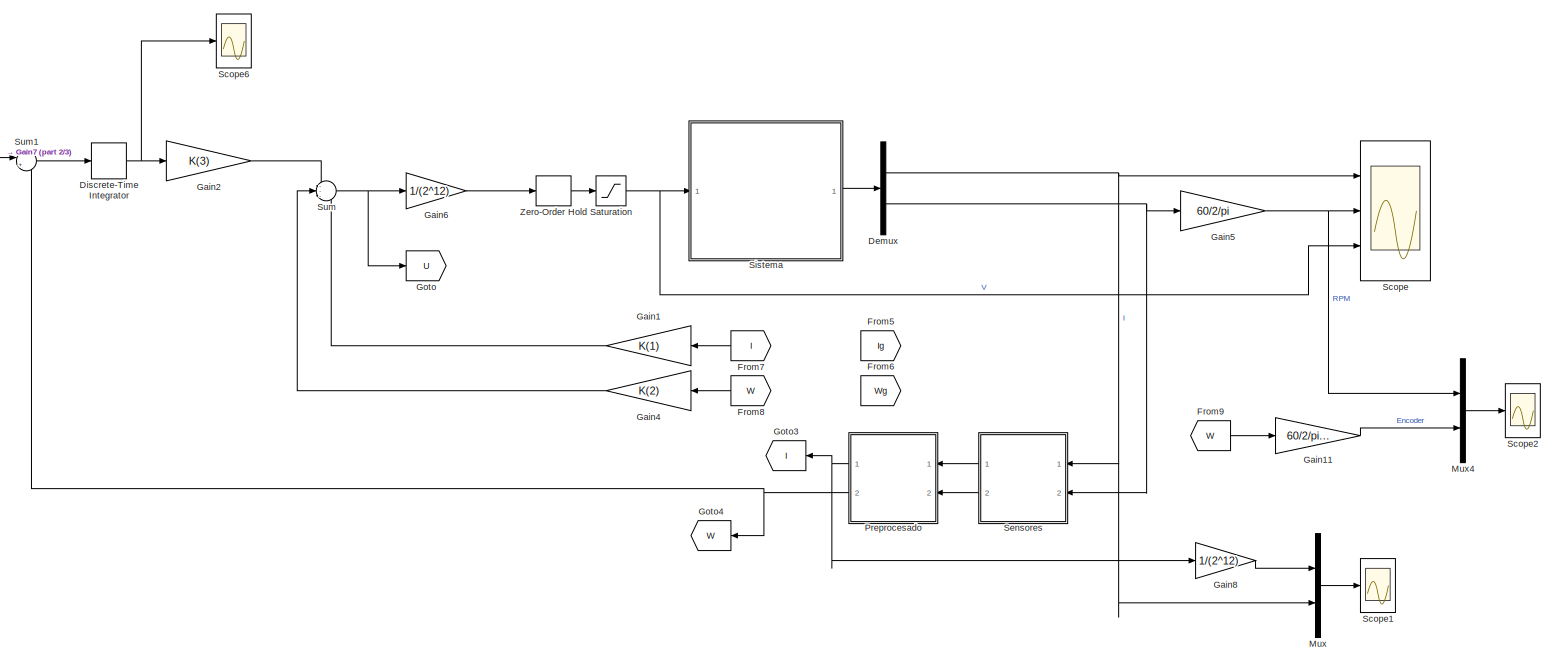
[diagram: root canvas - part 1/3, top center region]
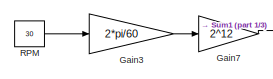
[diagram: root canvas - part 2/3, top left region]
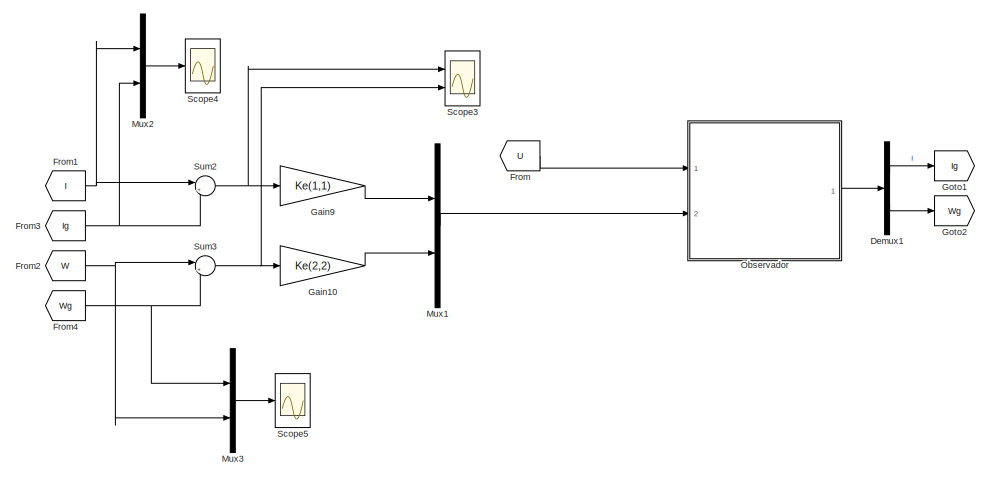
[diagram: root canvas - part 3/3, bottom left region]
MODEL slx_d7836b47fecc
KIND model
CONFIG AbsTol = auto
CONFIG EnableMultiTasking = off
CONFIG FixedStep = Ts
CONFIG MaxStep = auto
CONFIG MinStep = auto
CONFIG RelTol = 1e-3
CONFIG SampleTimeConstraint = Unconstrained
CONFIG Solver = ode4
CONFIG SolverName = ode4
CONFIG StartTime = 0.0
CONFIG StopTime = 10
BLOCK [Demux] Demux
  DisplayOption = bar
  Outputs = 2
  Ports = [1, 2]
BLOCK [Demux] Demux1
  DisplayOption = bar
  Outputs = 2
  Ports = [1, 2]
BLOCK [DiscreteIntegrator] Discrete-Time Integrator
  ICPrevOutput = DiscIntNeverNeededParam
  ICPrevScaledInput = DiscIntNeverNeededParam
  InitialConditionSetting = Auto
  Ports = [1, 1]
  SampleTime = Tsc
BLOCK [From] From
  GotoTag = U
BLOCK [From] From1
  GotoTag = I
BLOCK [From] From2
  GotoTag = W
BLOCK [From] From3
  GotoTag = Ig
BLOCK [From] From4
  GotoTag = Wg
BLOCK [From] From5
  Commented = on
  GotoTag = Ig
BLOCK [From] From6
  Commented = on
  GotoTag = Wg
BLOCK [From] From7
  GotoTag = I
BLOCK [From] From8
  GotoTag = W
BLOCK [From] From9
  GotoTag = W
BLOCK [Gain] Gain1
  Gain = K(1)
  OutDataTypeStr = Inherit: Inherit via internal rule
  ParamDataTypeStr = Inherit: Inherit via internal rule
  SaturateOnIntegerOverflow = off
BLOCK [Gain] Gain10
  Gain = Ke(2,2)
  OutDataTypeStr = Inherit: Inherit via internal rule
  ParamDataTypeStr = Inherit: Inherit via internal rule
  SaturateOnIntegerOverflow = off
BLOCK [Gain] Gain11
  Gain = 60/2/pi/2^12
  OutDataTypeStr = Inherit: Inherit via internal rule
  ParamDataTypeStr = Inherit: Inherit via internal rule
  SaturateOnIntegerOverflow = off
BLOCK [Gain] Gain2
  Gain = K(3)
  OutDataTypeStr = Inherit: Inherit via internal rule
  ParamDataTypeStr = Inherit: Inherit via internal rule
  SaturateOnIntegerOverflow = off
BLOCK [Gain] Gain3
  Gain = 2*pi/60
  OutDataTypeStr = Inherit: Inherit via internal rule
  ParamDataTypeStr = Inherit: Inherit via internal rule
  SaturateOnIntegerOverflow = off
BLOCK [Gain] Gain4
  Gain = K(2)
  OutDataTypeStr = Inherit: Inherit via internal rule
  ParamDataTypeStr = Inherit: Inherit via internal rule
  SaturateOnIntegerOverflow = off
BLOCK [Gain] Gain5
  Gain = 60/2/pi
  OutDataTypeStr = Inherit: Inherit via internal rule
  ParamDataTypeStr = Inherit: Inherit via internal rule
  SaturateOnIntegerOverflow = off
BLOCK [Gain] Gain6
  Gain = 1/(2^12)
  OutDataTypeStr = Inherit: Inherit via internal rule
  ParamDataTypeStr = Inherit: Inherit via internal rule
  SaturateOnIntegerOverflow = off
BLOCK [Gain] Gain7
  Gain = 2^12
  OutDataTypeStr = Inherit: Inherit via internal rule
  ParamDataTypeStr = Inherit: Inherit via internal rule
  SaturateOnIntegerOverflow = off
BLOCK [Gain] Gain8
  Gain = 1/(2^12)
  OutDataTypeStr = Inherit: Inherit via internal rule
  ParamDataTypeStr = Inherit: Inherit via internal rule
  SaturateOnIntegerOverflow = off
BLOCK [Gain] Gain9
  Gain = Ke(1,1)
  OutDataTypeStr = Inherit: Inherit via internal rule
  ParamDataTypeStr = Inherit: Inherit via internal rule
  SaturateOnIntegerOverflow = off
BLOCK [Goto] Goto
  GotoTag = U
BLOCK [Goto] Goto1
  GotoTag = Ig
BLOCK [Goto] Goto2
  GotoTag = Wg
BLOCK [Goto] Goto3
  GotoTag = I
BLOCK [Goto] Goto4
  GotoTag = W
BLOCK [Mux] Mux
  DisplayOption = bar
  Inputs = 2
  Ports = [2, 1]
BLOCK [Mux] Mux1
  DisplayOption = bar
  Inputs = 2
  Ports = [2, 1]
BLOCK [Mux] Mux2
  DisplayOption = bar
  Inputs = 2
  Ports = [2, 1]
BLOCK [Mux] Mux3
  DisplayOption = bar
  Inputs = 2
  Ports = [2, 1]
BLOCK [Mux] Mux4
  DisplayOption = bar
  Inputs = 2
  Ports = [2, 1]
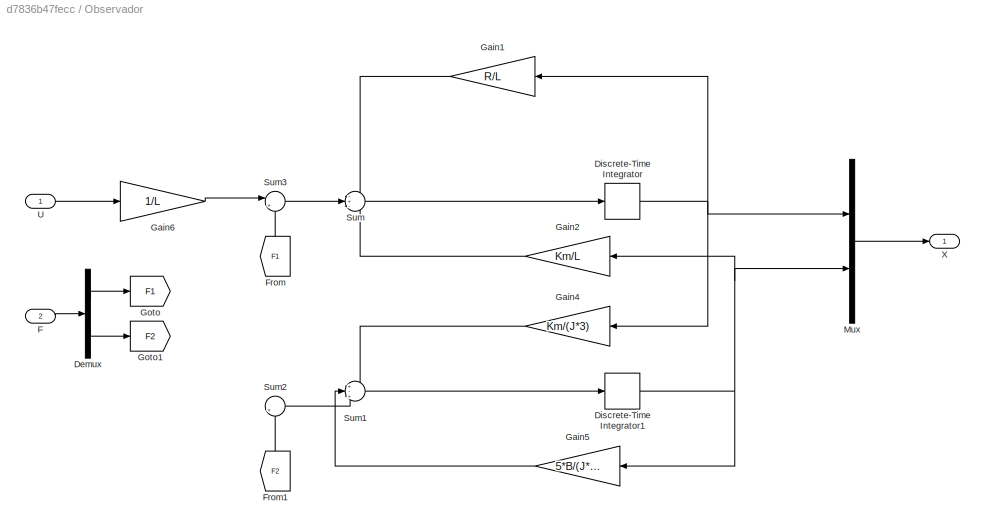
BLOCK [SubSystem] Observador
  Ports = [2, 1]
  RequestExecContextInheritance = off
BLOCK [Demux] Observador/Demux
  DisplayOption = bar
  Outputs = 2
  Ports = [1, 2]
BLOCK [DiscreteIntegrator] Observador/Discrete-Time Integrator
  ICPrevOutput = DiscIntNeverNeededParam
  ICPrevScaledInput = DiscIntNeverNeededParam
  InitialConditionSetting = Auto
  IntegratorMethod = Integration: Backward Euler
  Ports = [1, 1]
  SampleTime = Tsco
BLOCK [DiscreteIntegrator] Observador/Discrete-Time Integrator1
  ICPrevOutput = DiscIntNeverNeededParam
  ICPrevScaledInput = DiscIntNeverNeededParam
  InitialConditionSetting = Auto
  IntegratorMethod = Integration: Backward Euler
  Ports = [1, 1]
  SampleTime = Tsco
BLOCK [Inport] Observador/F
  IconDisplay = Port number
  Port = 2
BLOCK [From] Observador/From
  GotoTag = F1
BLOCK [From] Observador/From1
  GotoTag = F2
BLOCK [Gain] Observador/Gain1
  Gain = R/L
  OutDataTypeStr = Inherit: Inherit via internal rule
  ParamDataTypeStr = Inherit: Inherit via internal rule
  SaturateOnIntegerOverflow = off
BLOCK [Gain] Observador/Gain2
  Gain = Km/L
  OutDataTypeStr = Inherit: Inherit via internal rule
  ParamDataTypeStr = Inherit: Inherit via internal rule
  SaturateOnIntegerOverflow = off
BLOCK [Gain] Observador/Gain4
  Gain = Km/(J*3)
  OutDataTypeStr = Inherit: Inherit via internal rule
  ParamDataTypeStr = Inherit: Inherit via internal rule
  SaturateOnIntegerOverflow = off
BLOCK [Gain] Observador/Gain5
  Gain = 5*B/(J*3)
  OutDataTypeStr = Inherit: Inherit via internal rule
  ParamDataTypeStr = Inherit: Inherit via internal rule
  SaturateOnIntegerOverflow = off
BLOCK [Gain] Observador/Gain6
  Gain = 1/L
  OutDataTypeStr = Inherit: Inherit via internal rule
  ParamDataTypeStr = Inherit: Inherit via internal rule
  SaturateOnIntegerOverflow = off
BLOCK [Goto] Observador/Goto
  GotoTag = F1
BLOCK [Goto] Observador/Goto1
  GotoTag = F2
BLOCK [Mux] Observador/Mux
  DisplayOption = bar
  Inputs = 2
  Ports = [2, 1]
BLOCK [Sum] Observador/Sum
  IconShape = round
  InputSameDT = off
  Inputs = -+-
  OutDataTypeStr = Inherit: Inherit via internal rule
  Ports = [3, 1]
  SaturateOnIntegerOverflow = off
BLOCK [Sum] Observador/Sum1
  IconShape = round
  InputSameDT = off
  Inputs = +-+
  OutDataTypeStr = Inherit: Inherit via internal rule
  Ports = [3, 1]
  SaturateOnIntegerOverflow = off
BLOCK [Sum] Observador/Sum2
  IconShape = round
  InputSameDT = off
  Inputs = |++
  OutDataTypeStr = Inherit: Inherit via internal rule
  Ports = [2, 1]
  SaturateOnIntegerOverflow = off
BLOCK [Sum] Observador/Sum3
  IconShape = round
  InputSameDT = off
  Inputs = |++
  OutDataTypeStr = Inherit: Inherit via internal rule
  Ports = [2, 1]
  SaturateOnIntegerOverflow = off
BLOCK [Inport] Observador/U
  IconDisplay = Port number
BLOCK [Outport] Observador/X
  IconDisplay = Port number
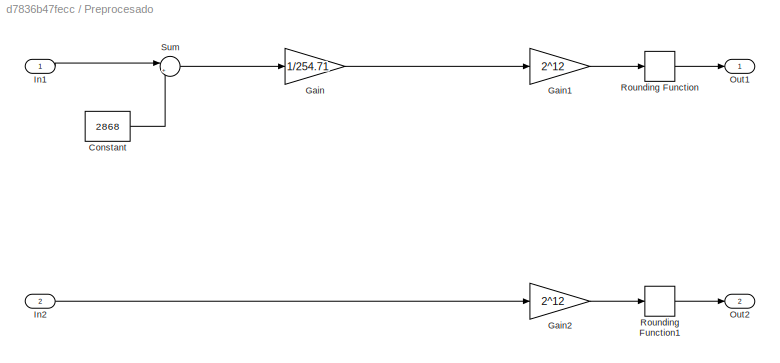
BLOCK [SubSystem] Preprocesado
  Ports = [2, 2]
  RequestExecContextInheritance = off
BLOCK [Constant] Preprocesado/Constant
  Value = 2868
BLOCK [Gain] Preprocesado/Gain
  Gain = 1/254.71
  OutDataTypeStr = Inherit: Inherit via internal rule
  ParamDataTypeStr = Inherit: Inherit via internal rule
  SaturateOnIntegerOverflow = off
BLOCK [Gain] Preprocesado/Gain1
  Gain = 2^12
  OutDataTypeStr = Inherit: Inherit via internal rule
  ParamDataTypeStr = Inherit: Inherit via internal rule
  SaturateOnIntegerOverflow = off
BLOCK [Gain] Preprocesado/Gain2
  Gain = 2^12
  OutDataTypeStr = Inherit: Inherit via internal rule
  ParamDataTypeStr = Inherit: Inherit via internal rule
  SaturateOnIntegerOverflow = off
BLOCK [Inport] Preprocesado/In1
  IconDisplay = Port number
BLOCK [Inport] Preprocesado/In2
  IconDisplay = Port number
  Port = 2
BLOCK [Outport] Preprocesado/Out1
  IconDisplay = Port number
BLOCK [Outport] Preprocesado/Out2
  IconDisplay = Port number
  Port = 2
BLOCK [Rounding] Preprocesado/Rounding Function
BLOCK [Rounding] Preprocesado/Rounding Function1
BLOCK [Sum] Preprocesado/Sum
  IconShape = round
  InputSameDT = off
  Inputs = |+-
  OutDataTypeStr = Inherit: Inherit via internal rule
  Ports = [2, 1]
  SaturateOnIntegerOverflow = off
BLOCK [Constant] RPM
  SampleTime = Ts
  Value = 30
BLOCK [Saturate] Saturation
  InputPortMap = u0
  LowerLimit = -12.8
  Ports = [1, 1]
  UpperLimit = 12.8
BLOCK [Scope] Scope
  Floating = off
  NumInputPorts = 3
  Ports = [3]
  ScopeSpecificationString = Simulink.scopes.TimeScopeBlockCfg('CurrentConfiguration', extmgr.ConfigurationSet(extmgr.Configuration('Core','General UI',true),extmgr.Configuration('Core','Source UI',true),extmgr.Configuration('Sources','WiredSimulink',true),extmgr.Configuration('Visuals','Time Domain',true,'SerializedDisplays',{struct('MinYLimReal','-2.39104','MaxYLimReal','2.58562','YLabelReal','','MinYLimMag','0.00000','MaxY...<+2668ch>
BLOCK [Scope] Scope1
  Floating = off
  NumInputPorts = 1
  Ports = [1]
  ScopeSpecificationString = Simulink.scopes.TimeScopeBlockCfg('CurrentConfiguration', extmgr.ConfigurationSet(extmgr.Configuration('Core','General UI',true),extmgr.Configuration('Core','Source UI',true),extmgr.Configuration('Sources','WiredSimulink',true,'DataLoggingVariableName','ScopeData1'),extmgr.Configuration('Visuals','Time Domain',true,'SerializedDisplays',{struct('MinYLimReal','-3.05678','MaxYLimReal','3.07022','YLab...<+1920ch>
BLOCK [Scope] Scope2
  Floating = off
  NumInputPorts = 1
  Ports = [1]
  ScopeSpecificationString = Simulink.scopes.TimeScopeBlockCfg('CurrentConfiguration', extmgr.ConfigurationSet(extmgr.Configuration('Core','General UI',true),extmgr.Configuration('Core','Source UI',true),extmgr.Configuration('Sources','WiredSimulink',true,'DataLoggingVariableName','ScopeData1'),extmgr.Configuration('Visuals','Time Domain',true,'SerializedDisplays',{struct('MinYLimReal','-68.84335','MaxYLimReal','119.74418','Y...<+1696ch>
BLOCK [Scope] Scope3
  Floating = off
  NumInputPorts = 2
  Ports = [2]
  ScopeSpecificationString = Simulink.scopes.TimeScopeBlockCfg('CurrentConfiguration', extmgr.ConfigurationSet(extmgr.Configuration('Core','General UI',true),extmgr.Configuration('Core','Source UI',true),extmgr.Configuration('Sources','WiredSimulink',true,'DataLoggingVariableName','ScopeData3'),extmgr.Configuration('Visuals','Time Domain',true,'SerializedDisplays',{struct('MinYLimReal','-15750.84055','MaxYLimReal','14185.1807...<+2720ch>
BLOCK [Scope] Scope4
  Floating = off
  NumInputPorts = 1
  Ports = [1]
  ScopeSpecificationString = Simulink.scopes.TimeScopeBlockCfg('CurrentConfiguration', extmgr.ConfigurationSet(extmgr.Configuration('Core','General UI',true),extmgr.Configuration('Core','Source UI',true),extmgr.Configuration('Sources','WiredSimulink',true,'DataLoggingVariableName','ScopeData4'),extmgr.Configuration('Visuals','Time Domain',true,'SerializedDisplays',{struct('MinYLimReal','-1450.25','MaxYLimReal','8862.25','YLab...<+1935ch>
BLOCK [Scope] Scope5
  Floating = off
  NumInputPorts = 1
  Ports = [1]
  ScopeSpecificationString = Simulink.scopes.TimeScopeBlockCfg('CurrentConfiguration', extmgr.ConfigurationSet(extmgr.Configuration('Core','General UI',true),extmgr.Configuration('Core','Source UI',true),extmgr.Configuration('Sources','WiredSimulink',true,'DataLoggingVariableName','ScopeData5'),extmgr.Configuration('Visuals','Time Domain',true,'SerializedDisplays',{struct('MinYLimReal','-16086.125','MaxYLimReal','144765.125',...<+1958ch>
BLOCK [Scope] Scope6
  Floating = off
  NumInputPorts = 1
  Ports = [1]
  ScopeSpecificationString = Simulink.scopes.TimeScopeBlockCfg('CurrentConfiguration', extmgr.ConfigurationSet(extmgr.Configuration('Core','General UI',true),extmgr.Configuration('Core','Source UI',true),extmgr.Configuration('Sources','WiredSimulink',true,'DataLoggingVariableName','ScopeData2'),extmgr.Configuration('Visuals','Time Domain',true,'SerializedDisplays',{struct('MinYLimReal','-2404.33795','MaxYLimReal','21639.04151...<+1645ch>
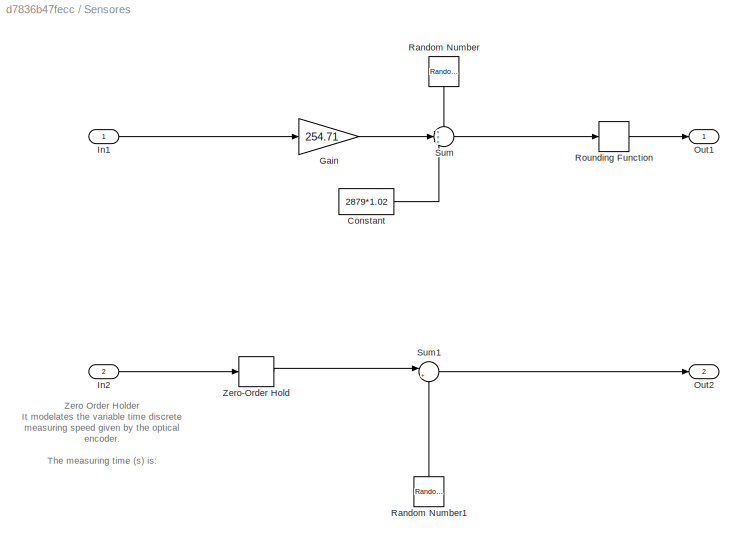
BLOCK [SubSystem] Sensores
  Ports = [2, 2]
  RequestExecContextInheritance = off
BLOCK [Constant] Sensores/Constant
  Value = 2879*1.02
BLOCK [Gain] Sensores/Gain
  Gain = 254.71
  OutDataTypeStr = Inherit: Inherit via internal rule
  ParamDataTypeStr = Inherit: Inherit via internal rule
  SaturateOnIntegerOverflow = off
BLOCK [Inport] Sensores/In1
  IconDisplay = Port number
BLOCK [Inport] Sensores/In2
  IconDisplay = Port number
  Port = 2
BLOCK [Outport] Sensores/Out1
  IconDisplay = Port number
BLOCK [Outport] Sensores/Out2
  IconDisplay = Port number
  Port = 2
BLOCK [RandomNumber] Sensores/Random Number
  SampleTime = Tsc
  Variance = 20^2
BLOCK [RandomNumber] Sensores/Random Number1
  SampleTime = Tsc
  Variance = 4
BLOCK [Rounding] Sensores/Rounding Function
BLOCK [Sum] Sensores/Sum
  IconShape = round
  InputSameDT = off
  Inputs = +++
  OutDataTypeStr = Inherit: Inherit via internal rule
  Ports = [3, 1]
  SaturateOnIntegerOverflow = off
BLOCK [Sum] Sensores/Sum1
  IconShape = round
  InputSameDT = off
  Inputs = |++
  OutDataTypeStr = Inherit: Inherit via internal rule
  Ports = [2, 1]
  SaturateOnIntegerOverflow = off
BLOCK [ZeroOrderHold] Sensores/Zero-Order Hold
  SampleTime = 60/30/20
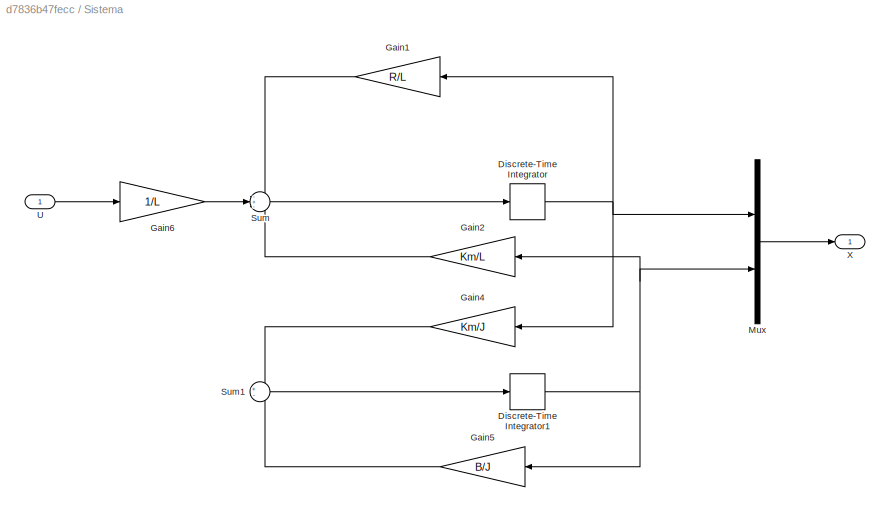
BLOCK [SubSystem] Sistema
  Ports = [1, 1]
  RequestExecContextInheritance = off
BLOCK [DiscreteIntegrator] Sistema/Discrete-Time Integrator
  ICPrevOutput = DiscIntNeverNeededParam
  ICPrevScaledInput = DiscIntNeverNeededParam
  InitialConditionSetting = Auto
  Ports = [1, 1]
  SampleTime = Ts
BLOCK [DiscreteIntegrator] Sistema/Discrete-Time Integrator1
  ICPrevOutput = DiscIntNeverNeededParam
  ICPrevScaledInput = DiscIntNeverNeededParam
  InitialConditionSetting = Auto
  Ports = [1, 1]
  SampleTime = Ts
BLOCK [Gain] Sistema/Gain1
  Gain = R/L
  OutDataTypeStr = Inherit: Inherit via internal rule
  ParamDataTypeStr = Inherit: Inherit via internal rule
  SaturateOnIntegerOverflow = off
BLOCK [Gain] Sistema/Gain2
  Gain = Km/L
  OutDataTypeStr = Inherit: Inherit via internal rule
  ParamDataTypeStr = Inherit: Inherit via internal rule
  SaturateOnIntegerOverflow = off
BLOCK [Gain] Sistema/Gain4
  Gain = Km/J
  OutDataTypeStr = Inherit: Inherit via internal rule
  ParamDataTypeStr = Inherit: Inherit via internal rule
  SaturateOnIntegerOverflow = off
BLOCK [Gain] Sistema/Gain5
  Gain = B/J
  OutDataTypeStr = Inherit: Inherit via internal rule
  ParamDataTypeStr = Inherit: Inherit via internal rule
  SaturateOnIntegerOverflow = off
BLOCK [Gain] Sistema/Gain6
  Gain = 1/L
  OutDataTypeStr = Inherit: Inherit via internal rule
  ParamDataTypeStr = Inherit: Inherit via internal rule
  SaturateOnIntegerOverflow = off
BLOCK [Mux] Sistema/Mux
  DisplayOption = bar
  Inputs = 2
  Ports = [2, 1]
BLOCK [Sum] Sistema/Sum
  IconShape = round
  InputSameDT = off
  Inputs = -+-
  OutDataTypeStr = Inherit: Inherit via internal rule
  Ports = [3, 1]
  SaturateOnIntegerOverflow = off
BLOCK [Sum] Sistema/Sum1
  IconShape = round
  InputSameDT = off
  Inputs = +-
  OutDataTypeStr = Inherit: Inherit via internal rule
  Ports = [2, 1]
  SaturateOnIntegerOverflow = off
BLOCK [Inport] Sistema/U
  IconDisplay = Port number
BLOCK [Outport] Sistema/X
  IconDisplay = Port number
BLOCK [Sum] Sum
  IconShape = round
  InputSameDT = off
  Inputs = ---
  OutDataTypeStr = Inherit: Inherit via internal rule
  Ports = [3, 1]
  SaturateOnIntegerOverflow = off
BLOCK [Sum] Sum1
  IconShape = round
  InputSameDT = off
  Inputs = |+-
  OutDataTypeStr = Inherit: Inherit via internal rule
  Ports = [2, 1]
  SaturateOnIntegerOverflow = off
BLOCK [Sum] Sum2
  IconShape = round
  InputSameDT = off
  Inputs = |+-
  OutDataTypeStr = Inherit: Inherit via internal rule
  Ports = [2, 1]
  SaturateOnIntegerOverflow = off
BLOCK [Sum] Sum3
  IconShape = round
  InputSameDT = off
  Inputs = |+-
  OutDataTypeStr = Inherit: Inherit via internal rule
  Ports = [2, 1]
  SaturateOnIntegerOverflow = off
BLOCK [ZeroOrderHold] Zero-Order Hold
  SampleTime = Tsc
ANNOTATION Sensores: Zero Order Holder It modelates the variable time discrete measuring speed given by the optical encoder. The measuring time (s) is: 60/(rpm)/20
LINE Demux1:1 -> Goto1:1
LINE Demux1:2 -> Goto2:1
NET Demux:1 -> Mux:2, Scope:1, Sensores:1
NET Demux:2 -> Gain5:1, Sensores:2
NET Discrete-Time Integrator:1 -> Gain2:1, Scope6:1
NET From1:1 -> Mux2:1, Sum2:1
NET From2:1 -> Mux3:2, Sum3:1
NET From3:1 -> Mux2:2, Sum2:2
NET From4:1 -> Mux3:1, Sum3:2
LINE From7:1 -> Gain1:1
LINE From8:1 -> Gain4:1
LINE From9:1 -> Gain11:1
LINE From:1 -> Observador:1
LINE Gain10:1 -> Mux1:2
LINE Gain11:1 -> Mux4:2
LINE Gain1:1 -> Sum:3
LINE Gain2:1 -> Sum:1
LINE Gain3:1 -> Gain7:1
LINE Gain4:1 -> Sum:2
NET Gain5:1 -> Mux4:1, Scope:2
LINE Gain6:1 -> Zero-Order Hold:1
LINE Gain7:1 -> Sum1:1
LINE Gain8:1 -> Mux:1
LINE Gain9:1 -> Mux1:1
LINE Mux1:1 -> Observador:2
LINE Mux2:1 -> Scope4:1
LINE Mux3:1 -> Scope5:1
LINE Mux4:1 -> Scope2:1
LINE Mux:1 -> Scope1:1
LINE Observador/Demux:1 -> Observador/Goto:1
LINE Observador/Demux:2 -> Observador/Goto1:1
NET Observador/Discrete-Time Integrator1:1 -> Observador/Gain2:1, Observador/Gain5:1, Observador/Mux:2
NET Observador/Discrete-Time Integrator:1 -> Observador/Gain1:1, Observador/Gain4:1, Observador/Mux:1
LINE Observador/F:1 -> Observador/Demux:1
LINE Observador/From1:1 -> Observador/Sum2:2
LINE Observador/From:1 -> Observador/Sum3:2
LINE Observador/Gain1:1 -> Observador/Sum:1
LINE Observador/Gain2:1 -> Observador/Sum:3
LINE Observador/Gain4:1 -> Observador/Sum1:1
LINE Observador/Gain5:1 -> Observador/Sum1:2
LINE Observador/Gain6:1 -> Observador/Sum3:1
LINE Observador/Mux:1 -> Observador/X:1
LINE Observador/Sum1:1 -> Observador/Discrete-Time Integrator1:1
LINE Observador/Sum2:1 -> Observador/Sum1:3
LINE Observador/Sum3:1 -> Observador/Sum:2
LINE Observador/Sum:1 -> Observador/Discrete-Time Integrator:1
LINE Observador/U:1 -> Observador/Gain6:1
LINE Observador:1 -> Demux1:1
LINE Preprocesado/Constant:1 -> Preprocesado/Sum:2
LINE Preprocesado/Gain1:1 -> Preprocesado/Rounding Function:1
LINE Preprocesado/Gain2:1 -> Preprocesado/Rounding Function1:1
LINE Preprocesado/Gain:1 -> Preprocesado/Gain1:1
LINE Preprocesado/In1:1 -> Preprocesado/Sum:1
LINE Preprocesado/In2:1 -> Preprocesado/Gain2:1
LINE Preprocesado/Rounding Function1:1 -> Preprocesado/Out2:1
LINE Preprocesado/Rounding Function:1 -> Preprocesado/Out1:1
LINE Preprocesado/Sum:1 -> Preprocesado/Gain:1
NET Preprocesado:1 -> Gain8:1, Goto3:1
NET Preprocesado:2 -> Goto4:1, Sum1:2
LINE RPM:1 -> Gain3:1
NET Saturation:1 -> Scope:3, Sistema:1
LINE Sensores/Constant:1 -> Sensores/Sum:3
LINE Sensores/Gain:1 -> Sensores/Sum:2
LINE Sensores/In1:1 -> Sensores/Gain:1
LINE Sensores/In2:1 -> Sensores/Zero-Order Hold:1
LINE Sensores/Random Number1:1 -> Sensores/Sum1:2
LINE Sensores/Random Number:1 -> Sensores/Sum:1
LINE Sensores/Rounding Function:1 -> Sensores/Out1:1
LINE Sensores/Sum1:1 -> Sensores/Out2:1
LINE Sensores/Sum:1 -> Sensores/Rounding Function:1
LINE Sensores/Zero-Order Hold:1 -> Sensores/Sum1:1
LINE Sensores:1 -> Preprocesado:1
LINE Sensores:2 -> Preprocesado:2
NET Sistema/Discrete-Time Integrator1:1 -> Sistema/Gain2:1, Sistema/Gain5:1, Sistema/Mux:2
NET Sistema/Discrete-Time Integrator:1 -> Sistema/Gain1:1, Sistema/Gain4:1, Sistema/Mux:1
LINE Sistema/Gain1:1 -> Sistema/Sum:1
LINE Sistema/Gain2:1 -> Sistema/Sum:3
LINE Sistema/Gain4:1 -> Sistema/Sum1:1
LINE Sistema/Gain5:1 -> Sistema/Sum1:2
LINE Sistema/Gain6:1 -> Sistema/Sum:2
LINE Sistema/Mux:1 -> Sistema/X:1
LINE Sistema/Sum1:1 -> Sistema/Discrete-Time Integrator1:1
LINE Sistema/Sum:1 -> Sistema/Discrete-Time Integrator:1
LINE Sistema/U:1 -> Sistema/Gain6:1
LINE Sistema:1 -> Demux:1
LINE Sum1:1 -> Discrete-Time Integrator:1
NET Sum2:1 -> Gain9:1, Scope3:1
NET Sum3:1 -> Gain10:1, Scope3:2
NET Sum:1 -> Gain6:1, Goto:1
LINE Zero-Order Hold:1 -> Saturation:1
note: NET lines group one-source signal fan-out (src -> all destinations, sorted); 1:1 wires keep LINE
